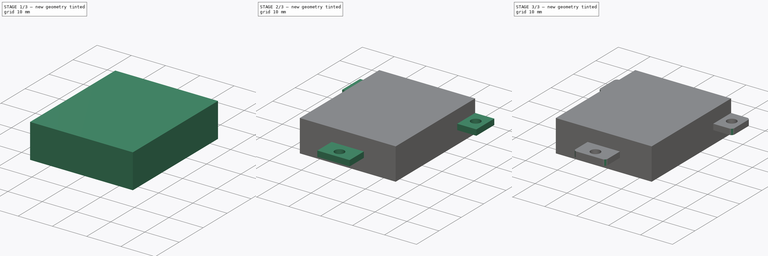
[diagram: build sequence overview — one tinted view per stage of 3, left to right]
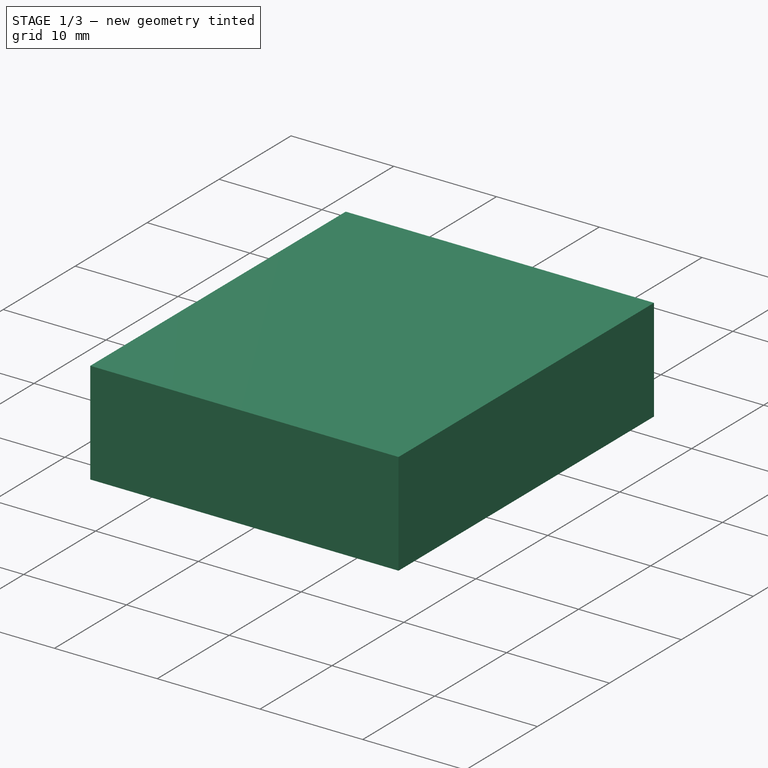
[diagram: stage 1 of 3 — iso view after this stage's code; geometry added in this stage tinted green]
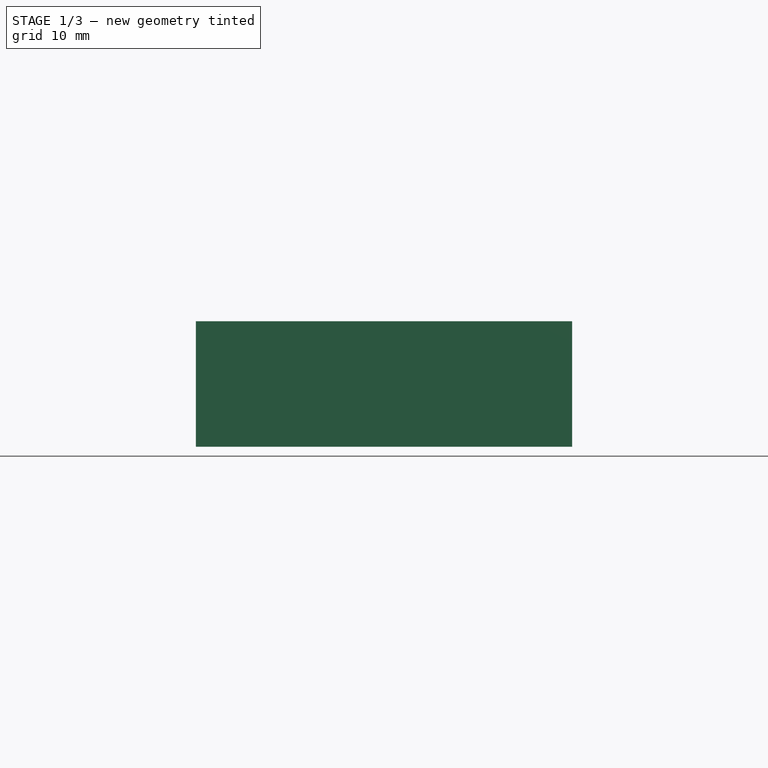
[diagram: stage 1 of 3 — front view after this stage's code; geometry added in this stage tinted green]
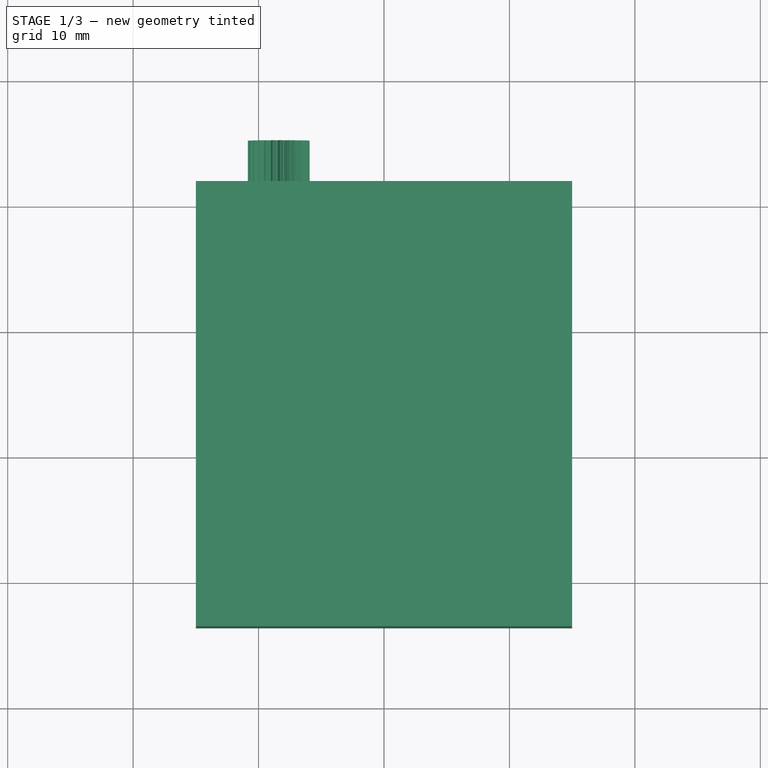
[diagram: stage 1 of 3 — top view after this stage's code; geometry added in this stage tinted green]
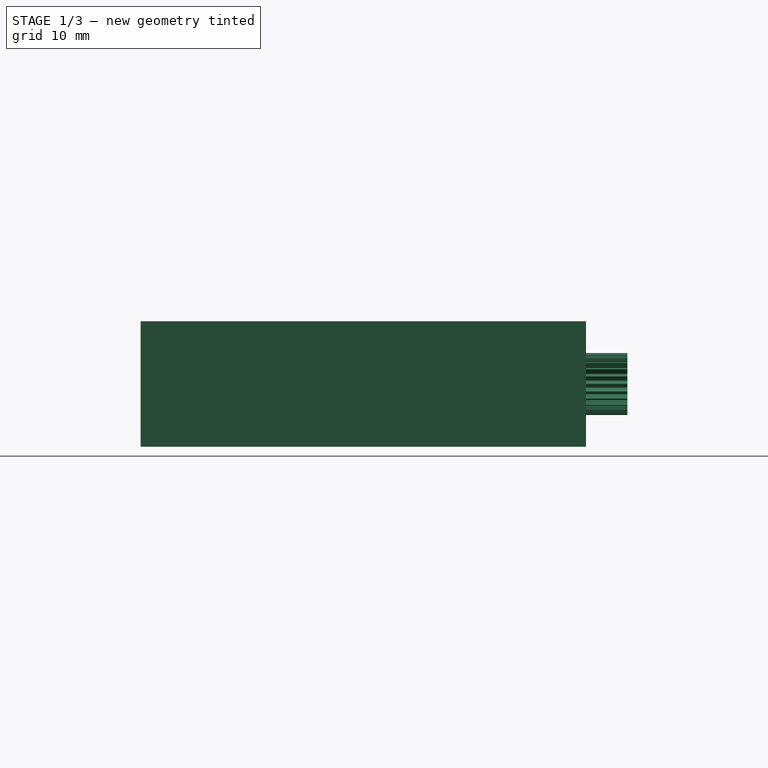
[diagram: stage 1 of 3 — right view after this stage's code; geometry added in this stage tinted green]
FCSTD DOCUMENT  (FreeCAD 0.20R29410 (Git))
Label: SERVO FLAT PARAMTERIQUE
License: All rights reserved
LicenseURL: http://en.wikipedia.org/wiki/All_rights_reserved
objects: Sketcher::SketchObject×2, PartDesign::Pad×2, PartDesign::Body×2, Spreadsheet::Sheet×1, Image::ImagePlane×1, PartDesign::Fillet×1, Part::FeaturePython×1, Part::MultiFuse×1, App::Part×1
note: 12 computed .brp shape members not serialized (recipe doc carries the construction recipe); baked Part::Feature solids carry a one-line shape summary decoded from their .brp

FEATURE [PartDesign::Body] Body
  Group = -> [Sketch,Pad,Fillet]
  Origin = -> Origin001
  Tip = -> Fillet
FEATURE [Sketcher::SketchObject] Sketch001
  FullyConstrained = true
  MapMode = 5
  Support = -> [XY_Plane002]
  expr: Constraints[10] = <<ServoFlat>>.EE
  expr: Constraints[8] = <<ServoFlat>>.gg - <<ServoFlat>>.ii
  expr: Constraints[9] = <<ServoFlat>>.jj
  sketch-geometry (4):
    g0: LineSegment StartX=-15 StartY=6.4 StartZ=0 EndX=15 EndY=6.4 EndZ=0
    g1: LineSegment StartX=15 StartY=6.4 StartZ=0 EndX=15 EndY=41.9 EndZ=0
    g2: LineSegment StartX=15 StartY=41.9 StartZ=0 EndX=-15 EndY=41.9 EndZ=0
    g3: LineSegment StartX=-15 StartY=41.9 StartZ=0 EndX=-15 EndY=6.4 EndZ=0
  constraints (11):
    c: Coincident(g0,g1)
    c: Coincident(g1,g2)
    c: Coincident(g2,g3)
    c: Coincident(g3,g0)
    c: Horizontal(g0)
    c: Vertical(g1)
    c: Vertical(g3)
    c: Symmetric(g2,g1,g-2)
    c: DistanceY(g-1,g0) = 6.4
    c: DistanceY(g0,g1) = 35.5
    c: DistanceX(g2,g1) = 30
FEATURE [PartDesign::Pad] Pad001
  Direction = (0,0,1)
  Length = 10
  Length2 = 100
  Midplane = true
  Profile = -> Sketch001
  Type = 0
  expr: Length = <<ServoFlat>>.CC
FEATURE [PartDesign::Body] Body001
  Group = -> [Sketch001,Pad001]
  Origin = -> Origin002
  Tip = -> Pad001
FEATURE [Part::FeaturePython] involutegear  # WARN: FeaturePython — macro-defined, semantics opaque (R4)
  AttacherType = Attacher::AttachEngine3D
  Placement = pos=(-8.4,41.9,0) rot=(-1,0,0;1.5708rad)
  backlash = 0
  beta = 0
  clearance = 0
  da = 4.94
  df = 4.20815
  double_helix = false
  dw = 4.57407
  head = 0
  height = 3.3
  module = 0.182963
  numpoints = 2
  pressure_angle = 30
  properties_from_tool = false
  reversed_backlash = false
  shift = 0
  simple = false
  teeth = 25
  transverse_pitch = 0.574795
  undercut = false
  version = 0.0.3
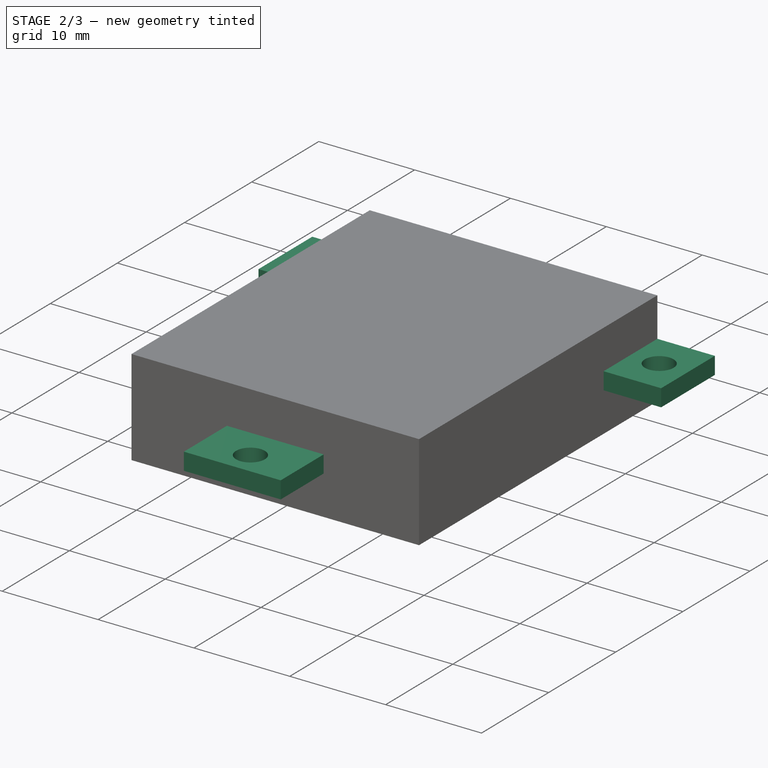
[diagram: stage 2 of 3 — iso view after this stage's code; geometry added in this stage tinted green]
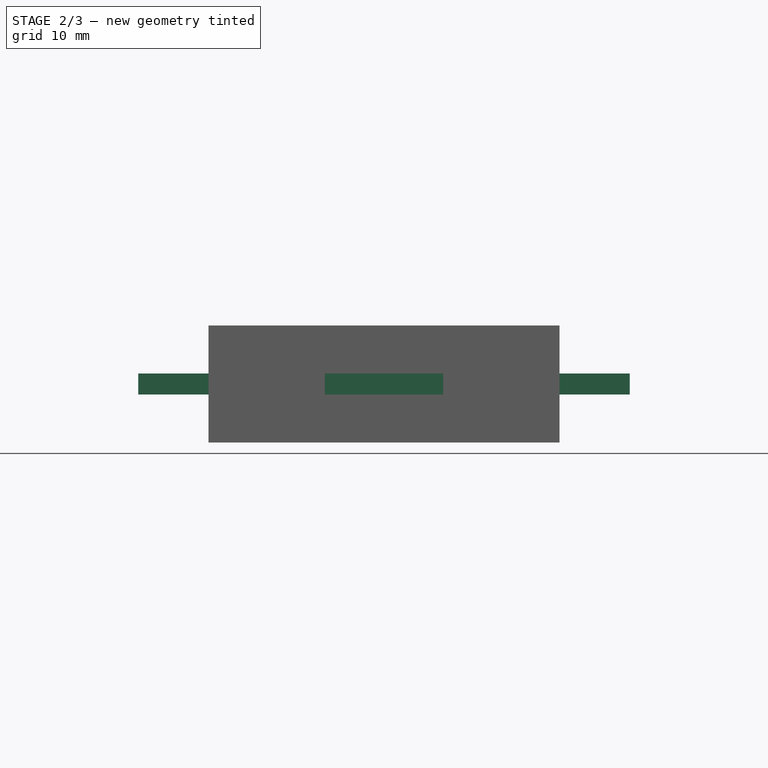
[diagram: stage 2 of 3 — front view after this stage's code; geometry added in this stage tinted green]
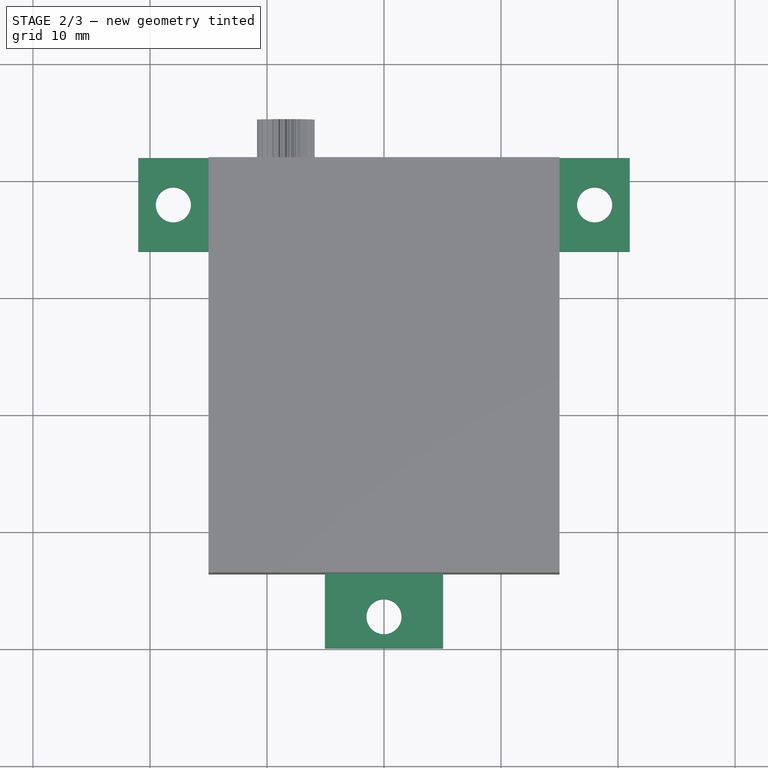
[diagram: stage 2 of 3 — top view after this stage's code; geometry added in this stage tinted green]
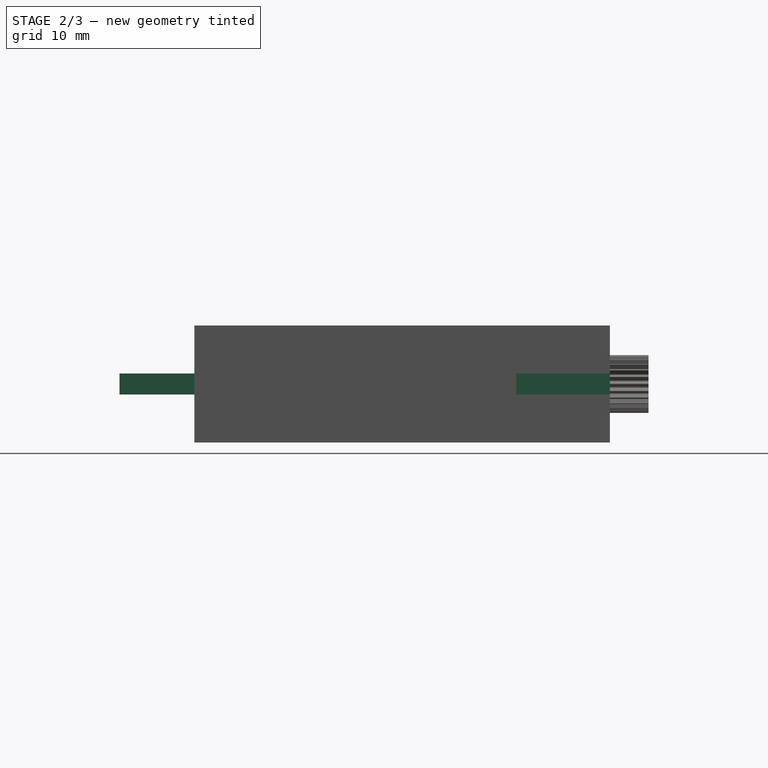
[diagram: stage 2 of 3 — right view after this stage's code; geometry added in this stage tinted green]
FEATURE [Spreadsheet::Sheet] Spreadsheet  label="ServoFlat"
  cells = A1=Marque ; B1=Nom du servo; C1=A; D1=B; E1=C; F1=D; G1=E; H1=d1; I1=a; J1=b; K1=c; L1=d; M1=e; N1=f; O1=g; P1=h; Q1=i; R1=j; S1=k; T1=d2; U1=X1; V1=X2; W1=g0; X1=g1; Y1=ag1; Z1=T; A2(marque)=KST; B2(type)==hiddenref(Part.configuration.String); C2(AA)==.C3; D2(BB)==.D3; E2(CC)==.E3; F2(DD)==.F3; G2(EE)==.G3; H2(d1)==.H3; I2(aa)==.I3; J2(bb)==.J3; K2(cc)==.K3; L2(dd)==.L3; M2(ee)==.M3; N2(ff)==.N3; O2(gg)==.O3; P2(hh)==.P3; Q2(ii)==.Q3; R2(jj)==.R3; S2(kk)==.S3; T2(d2)==.T3; U2(X_1)==.U3; V2(X_2)==.V3; W2(g0)==.W3; X2(g1)==.X3; Y2(ag1)==.Y3; Z2(T)==.Z3; A3=KST; B3=X10Mini; C3=12.6; D3=6.6; E3=10; F3=1.8; G3=30; H3=2; I3=42; J3=36; K3=9.6; L3=41.9; M3=35.2; N3=10.1; O3=45.2; P3=42.5; Q3=38.8; R3=35.5; S3=8; T3=3; U3=4.94; V3=4.25; W3=0.1; X3=0.16; Y3=60; Z3=25
  part = 0
  expr: .cells.Bind.C2.ZZ2 = tuple(.cells; <<C>> + str(hiddenref(Part.configuration) + 3); <<ZZ>> + str(hiddenref(Part.configuration) + 3))
  expr: .part.Enum = cells[<<B3:|>>]
FEATURE [Image::ImagePlane] ImagePlane  label="Image reference dimension"
  Placement = pos=(0,0,-40) rot=(0,0,1;0rad)
  XSize = 210
  YSize = 297
FEATURE [Sketcher::SketchObject] Sketch
  FullyConstrained = true
  MapMode = 5
  Support = -> [XY_Plane001]
  expr: Constraints[26] = <<ServoFlat>>.aa
  expr: Constraints[27] = <<ServoFlat>>.kk
  expr: Constraints[28] = <<ServoFlat>>.ff
  expr: Constraints[29] = <<ServoFlat>>.jj
  expr: Constraints[31] = <<ServoFlat>>.gg - (<<ServoFlat>>.ii - <<ServoFlat>>.jj)
  expr: Constraints[32] = <<ServoFlat>>.EE
  expr: Constraints[40] = <<ServoFlat>>.d2 / 2
  expr: Constraints[42] = <<ServoFlat>>.bb
  expr: Constraints[43] = <<ServoFlat>>.ee
  sketch-geometry (16):
    g0: LineSegment StartX=-15 StartY=6.4 StartZ=0 EndX=-5.05 EndY=6.4 EndZ=0
    g1: LineSegment StartX=-5.05 StartY=6.4 StartZ=0 EndX=-5.05 EndY=0 EndZ=0
    g2: LineSegment StartX=-5.05 StartY=0 StartZ=0 EndX=5.05 EndY=0 EndZ=0
    g3: LineSegment StartX=5.05 StartY=0 StartZ=0 EndX=5.05 EndY=6.4 EndZ=0
    g4: LineSegment StartX=5.05 StartY=6.4 StartZ=0 EndX=15 EndY=6.4 EndZ=0
    g5: LineSegment StartX=15 StartY=6.4 StartZ=0 EndX=15 EndY=33.9 EndZ=0
    g6: LineSegment StartX=15 StartY=33.9 StartZ=0 EndX=21 EndY=33.9 EndZ=0
    g7: LineSegment StartX=21 StartY=33.9 StartZ=0 EndX=21 EndY=41.9 EndZ=0
    g8: LineSegment StartX=21 StartY=41.9 StartZ=0 EndX=-21 EndY=41.9 EndZ=0
    g9: LineSegment StartX=-21 StartY=41.9 StartZ=0 EndX=-21 EndY=33.9 EndZ=0
    g10: LineSegment StartX=-21 StartY=33.9 StartZ=0 EndX=-15 EndY=33.9 EndZ=0
    g11: LineSegment StartX=-15 StartY=33.9 StartZ=0 EndX=-15 EndY=6.4 EndZ=0
    g12: LineSegment StartX=-21 StartY=37.9 StartZ=0 EndX=21 EndY=37.9 EndZ=0
    g13: Circle CenterX=-18 CenterY=37.9 CenterZ=0 NormalX=0 NormalY=0 NormalZ=1 AngleXU=0 Radius=1.5
    g14: Circle CenterX=18 CenterY=37.9 CenterZ=0 NormalX=0 NormalY=0 NormalZ=1 AngleXU=0 Radius=1.5
    g15: Circle CenterX=0 CenterY=2.7 CenterZ=0 NormalX=0 NormalY=0 NormalZ=1 AngleXU=0 Radius=1.5
  constraints (44):
    c: Horizontal(g0)
    c: Coincident(g0,g1)
    c: Vertical(g1)
    c: Coincident(g1,g2)
    c: Coincident(g2,g3)
    c: Vertical(g3)
    c: Coincident(g3,g4)
    c: Horizontal(g4)
    c: Coincident(g4,g5)
    c: Vertical(g5)
    c: Coincident(g5,g6)
    c: Horizontal(g6)
    c: Coincident(g6,g7)
    c: Coincident(g7,g8)
    c: Coincident(g8,g9)
    c: Vertical(g9)
    c: Coincident(g9,g10)
    c: Coincident(g10,g11)
    c: Coincident(g11,g0)
    c: Vertical(g11)
    c: Symmetric(g8,g7,g-2)
    c: Vertical(g7)
    c: Equal(g9,g7)
    c: Symmetric(g10,g5,g-2)
    c: Symmetric(g1,g2,g-2)
    c: Equal(g11,g5)
    c: DistanceX(g8,g8) = 42
    c: DistanceY(g7,g7) = 8
    c: DistanceX(g1,g2) = 10.1
    c: DistanceY(g4,g7) = 35.5
    c: PointOnObject(g-1,g2)
    c: DistanceY(g2,g7) = 41.9
    c: DistanceX(g0,g4) = 30
    c: PointOnObject(g12,g9)
    c: Horizontal(g12)
    c: Symmetric(g7,g6,g12)
    c: PointOnObject(g13,g12)
    c: PointOnObject(g15,g-2)
    c: Equal(g15,g13)
    c: Equal(g13,g14)
    c: Radius(g14) = 1.5
    c: Symmetric(g13,g14,g-2)
    c: DistanceX(g13,g14) = 36
    c: DistanceY(g15,g13) = 35.2
FEATURE [PartDesign::Pad] Pad
  Direction = (0,0,1)
  Length = 1.8
  Length2 = 100
  Midplane = true
  Profile = -> Sketch
  Type = 0
  expr: Length = <<ServoFlat>>.DD
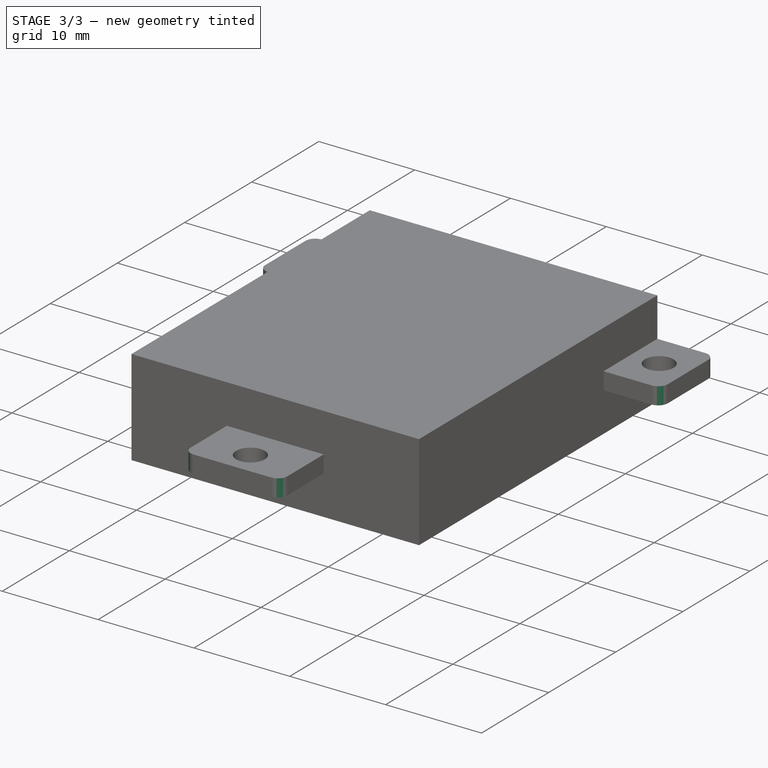
[diagram: stage 3 of 3 — iso view after this stage's code; geometry added in this stage tinted green]
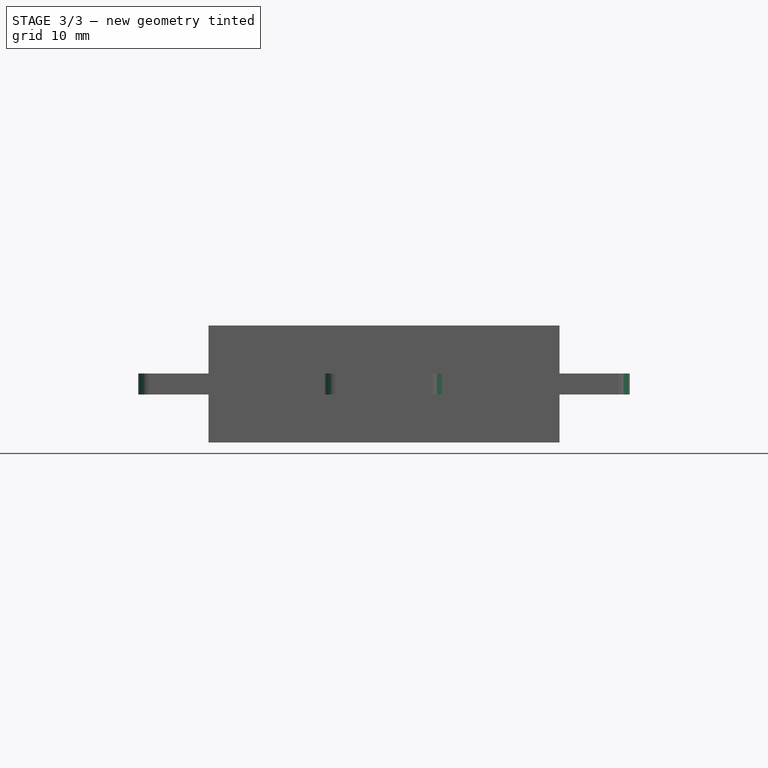
[diagram: stage 3 of 3 — front view after this stage's code; geometry added in this stage tinted green]
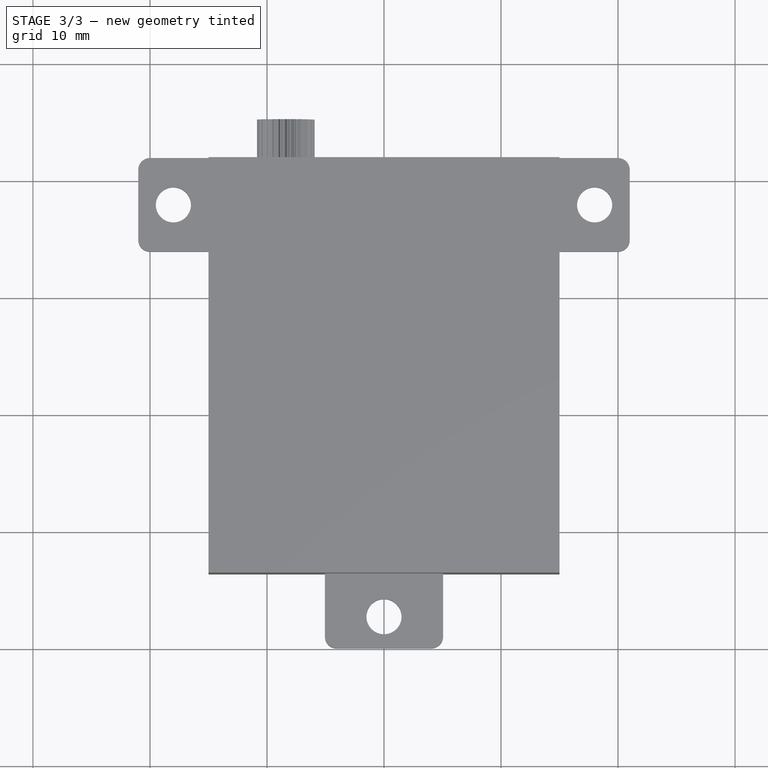
[diagram: stage 3 of 3 — top view after this stage's code; geometry added in this stage tinted green]
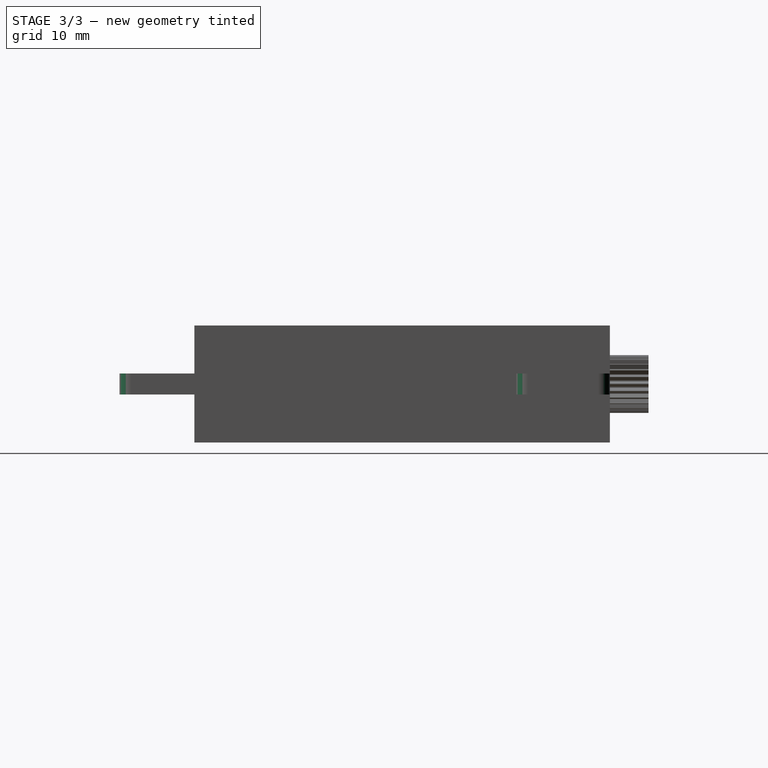
[diagram: stage 3 of 3 — right view after this stage's code; geometry added in this stage tinted green]
FEATURE [PartDesign::Fillet] Fillet
  Base = -> Pad [Edge29,Edge26,Edge23,Edge20,Edge8,Edge5]
  BaseFeature = -> Pad
  Radius = 1
  SupportTransform = false
  UseAllEdges = false
FEATURE [Part::MultiFuse] Fusion
  Shapes = -> [Body,Body001,involutegear]
FEATURE [App::Part] Part  label="KST_X10Mini"
  Group = -> [Spreadsheet,ImagePlane,Body,Body001,involutegear,Fusion]
  Origin = -> Origin
  configuration = 0
  expr: .configuration.Enum = Spreadsheet.cells[<<B3:|>>]
  expr: Label = <<ServoFlat>>.marque + <<_>> + <<ServoFlat>>.type
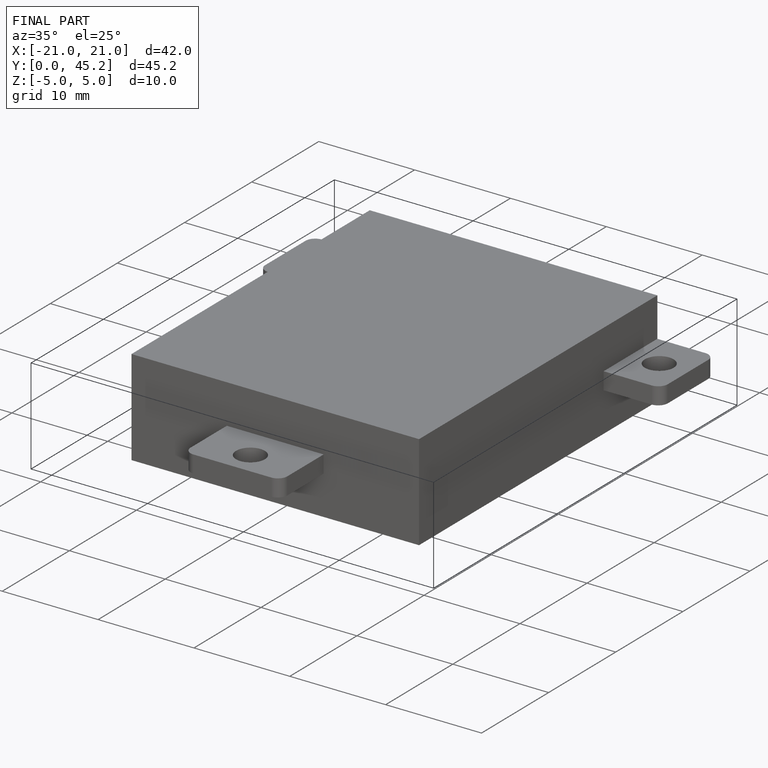
[diagram: finished part — iso view with bounding-box wireframe]
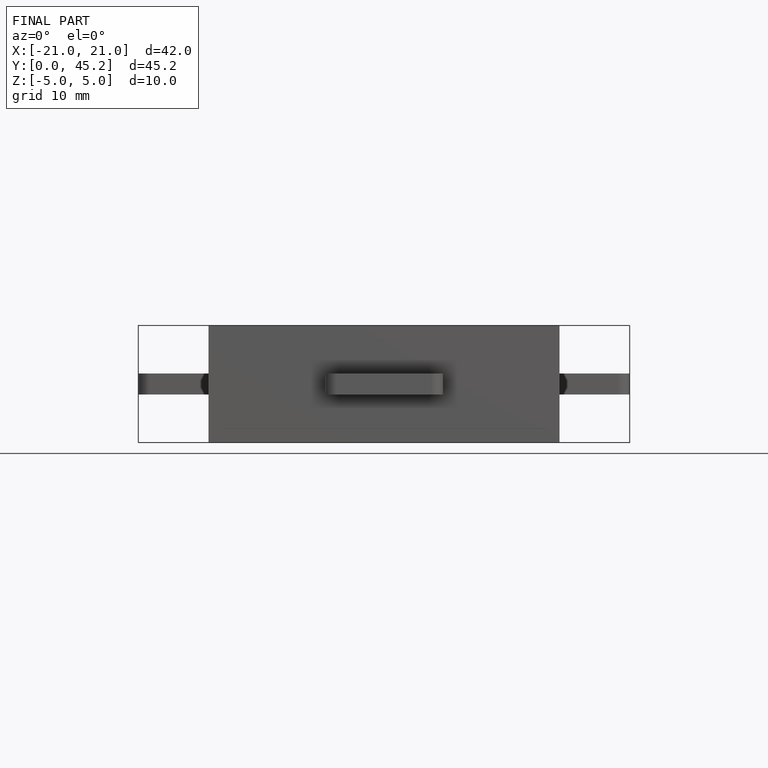
[diagram: finished part — front view with bounding-box wireframe]
